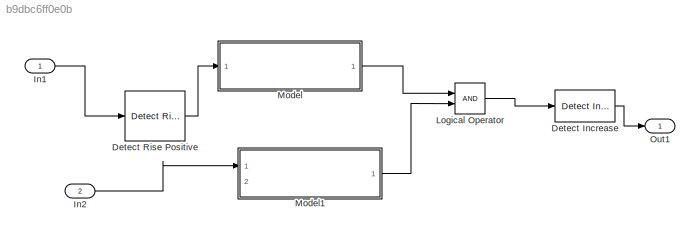
MODEL slx_b9dbc6ff0e0b
KIND model
CONFIG AbsTol = auto
CONFIG EnableMultiTasking = off
CONFIG FixedStep = auto
CONFIG MaxStep = auto
CONFIG MinStep = auto
CONFIG RelTol = 1e-3
CONFIG SampleTimeConstraint = Unconstrained
CONFIG Solver = VariableStepAuto
CONFIG SolverName = VariableStepAuto
CONFIG StartTime = 0.0
CONFIG StopTime = 10.0
BLOCK [Reference] Detect Increase  REF=simulink/Logic and Bit
Operations/Detect
Increase
  Ports = [1, 1]
  SourceBlock = simulink/Logic and Bit\nOperations/Detect\nIncrease
  SourceType = Detect Increase
BLOCK [Reference] Detect Rise Positive  REF=simulink/Logic and Bit
Operations/Detect Rise
Positive
  Ports = [1, 1]
  SourceBlock = simulink/Logic and Bit\nOperations/Detect Rise\nPositive
  SourceType = Detect Rise Positive
BLOCK [Inport] In1
  IconDisplay = Port number
BLOCK [Inport] In2
  IconDisplay = Port number
  Port = 2
BLOCK [Logic] Logical Operator
  AllPortsSameDT = off
  OutDataTypeStr = boolean
  Ports = [2, 1]
BLOCK [ModelReference] Model
  ModelNameDialog = Block2211.slx
  ModelReferenceVersion = 1.1
  Ports = [1, 1]
  Variant = off
BLOCK [ModelReference] Model1
  ModelNameDialog = Logic222.slx
  ModelReferenceVersion = 1.2
  Ports = [2, 1]
  Variant = off
BLOCK [Outport] Out1
  IconDisplay = Port number
LINE Detect Increase:1 -> Out1:1
LINE Detect Rise Positive:1 -> Model:1
LINE In1:1 -> Detect Rise Positive:1
LINE In2:1 -> Model1:1
LINE Logical Operator:1 -> Detect Increase:1
LINE Model1:1 -> Logical Operator:2
LINE Model:1 -> Logical Operator:1
